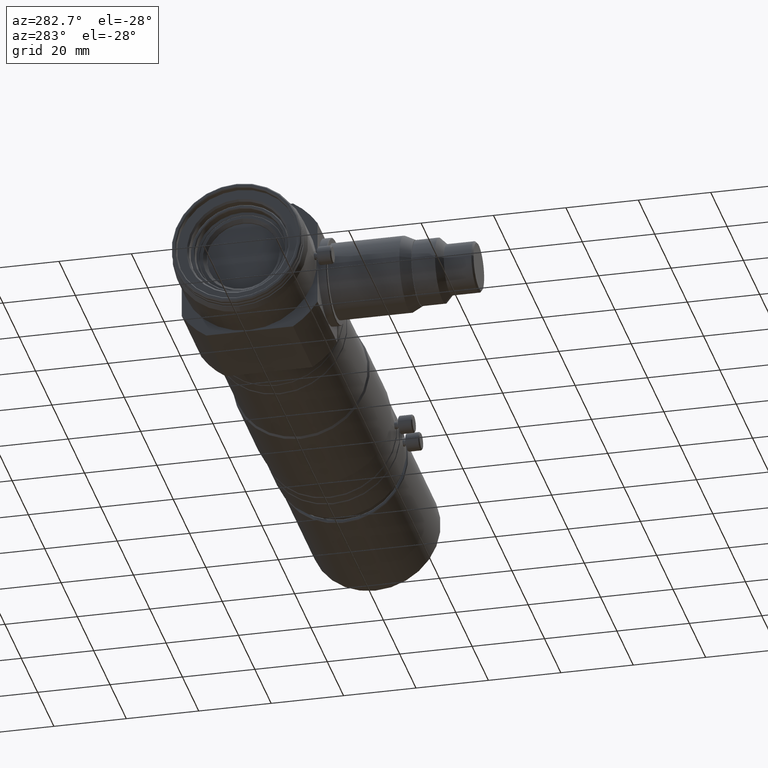
[diagram: clean part render]
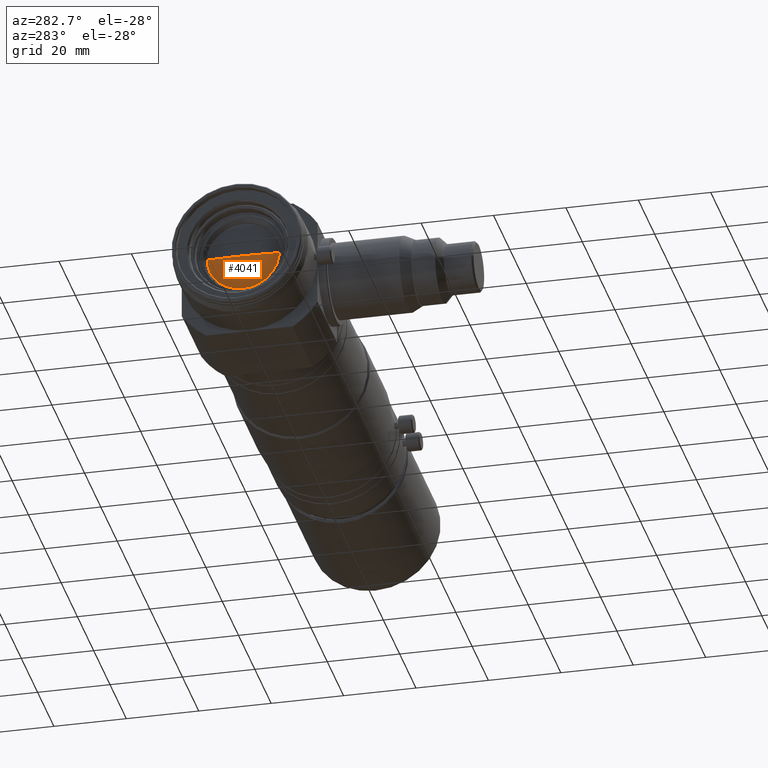
[diagram: same view with one face highlighted and labeled with its STEP entity id]
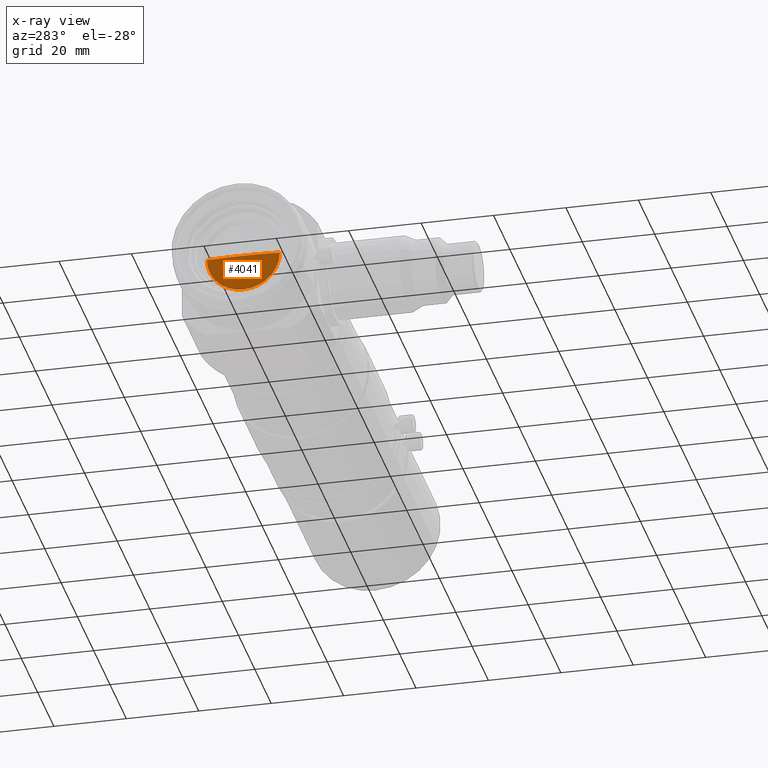
[diagram: x-ray of the same camera — body ghosted, the highlighted face saturated]
A machine part, auxiliary view. The second image highlights one B-rep face of the part: STEP entity #4041.
The next image is the same camera in x-ray: the body ghosted, the highlighted face saturated — about 0% of this face is hidden behind the body in this view.
In plain terms, the highlighted spherical surface has radius 131.8 mm.
Its self-contained STEP definition (entity closure, byte-faithful):
#76 = AXIS2_PLACEMENT_3D ( 'NONE', #2952, #4845, #6088 ) ;
#108 = CARTESIAN_POINT ( 'NONE',  ( 8.448532300058333900, 0.0000000000000000000, 0.0000000000000000000 ) ) ;
#150 = DIRECTION ( 'NONE',  ( 0.0000000000000000000, 1.000000000000000000, 1.224646799147353000E-016 ) ) ;
#172 = EDGE_CURVE ( 'NONE', #6567, #4218, #610, .T. ) ;
#271 = EDGE_CURVE ( 'NONE', #6567, #6409, #1284, .T. ) ;
#369 = DIRECTION ( 'NONE',  ( 0.0000000000000000000, 0.0000000000000000000, 1.000000000000000000 ) ) ;
#414 = CIRCLE ( 'NONE', #4610, 131.7999999999999800 ) ;
#610 = CIRCLE ( 'NONE', #5006, 131.8000000000000100 ) ;
#1176 = EDGE_CURVE ( 'NONE', #6409, #5242, #6643, .T. ) ;
#1284 = CIRCLE ( 'NONE', #1503, 10.10000000000006700 ) ;
#1296 = ORIENTED_EDGE ( 'NONE', *, *, #172, .F. ) ;
#1477 = CARTESIAN_POINT ( 'NONE',  ( 8.448532300058333900, 0.0000000000000000000, 0.0000000000000000000 ) ) ;
#1503 = AXIS2_PLACEMENT_3D ( 'NONE', #108, #5721, #5957 ) ;
#2126 = CARTESIAN_POINT ( 'NONE',  ( 8.448532300058333900, 0.0000000000000000000, -10.10000000000006700 ) ) ;
#2432 = SPHERICAL_SURFACE ( 'NONE', #76, 131.7999999999999800 ) ;
#2524 = DIRECTION ( 'NONE',  ( -0.0000000000000000000, 0.0000000000000000000, 1.000000000000000000 ) ) ;
#2726 = EDGE_CURVE ( 'NONE', #5242, #4218, #414, .T. ) ;
#2886 = CARTESIAN_POINT ( 'NONE',  ( 8.060974633347289100, -2.070352886147430100E-013, 0.0000000000000000000 ) ) ;
#2952 = CARTESIAN_POINT ( 'NONE',  ( 139.8609746333472700, -2.151057110211240800E-013, 0.0000000000000000000 ) ) ;
#3145 = CARTESIAN_POINT ( 'NONE',  ( 139.8609746333472700, -2.151057110211240800E-013, 0.0000000000000000000 ) ) ;
#3208 = ORIENTED_EDGE ( 'NONE', *, *, #1176, .T. ) ;
#3868 = DIRECTION ( 'NONE',  ( 0.0000000000000000000, 1.224646799147353200E-016, -1.000000000000000000 ) ) ;
#4041 = ADVANCED_FACE ( 'NONE', ( #4111 ), #2432, .T. ) ;
#4111 = FACE_OUTER_BOUND ( 'NONE', #6164, .T. ) ;
#4218 = VERTEX_POINT ( 'NONE', #2886 ) ;
#4345 = CARTESIAN_POINT ( 'NONE',  ( 8.448532300058341000, -10.10000000000030300, -1.236893267138837700E-015 ) ) ;
#4610 = AXIS2_PLACEMENT_3D ( 'NONE', #7611, #3868, #150 ) ;
#4815 = ORIENTED_EDGE ( 'NONE', *, *, #271, .T. ) ;
#4845 = DIRECTION ( 'NONE',  ( -0.0000000000000000000, 0.0000000000000000000, -1.000000000000000000 ) ) ;
#5006 = AXIS2_PLACEMENT_3D ( 'NONE', #3145, #2524, #6246 ) ;
#5242 = VERTEX_POINT ( 'NONE', #4345 ) ;
#5367 = DIRECTION ( 'NONE',  ( -1.000000000000000000, -0.0000000000000000000, -0.0000000000000000000 ) ) ;
#5568 = CARTESIAN_POINT ( 'NONE',  ( 8.448532300058341000, 10.10000000000008800, 0.0000000000000000000 ) ) ;
#5721 = DIRECTION ( 'NONE',  ( -1.000000000000000000, -0.0000000000000000000, -0.0000000000000000000 ) ) ;
#5957 = DIRECTION ( 'NONE',  ( 0.0000000000000000000, 0.0000000000000000000, 1.000000000000000000 ) ) ;
#6088 = DIRECTION ( 'NONE',  ( 0.0000000000000000000, 1.000000000000000000, 0.0000000000000000000 ) ) ;
#6095 = AXIS2_PLACEMENT_3D ( 'NONE', #1477, #5367, #369 ) ;
#6164 = EDGE_LOOP ( 'NONE', ( #3208, #7432, #1296, #4815 ) ) ;
#6246 = DIRECTION ( 'NONE',  ( 1.000000000000000000, 0.0000000000000000000, 0.0000000000000000000 ) ) ;
#6409 = VERTEX_POINT ( 'NONE', #2126 ) ;
#6567 = VERTEX_POINT ( 'NONE', #5568 ) ;
#6643 = CIRCLE ( 'NONE', #6095, 10.10000000000006700 ) ;
#7432 = ORIENTED_EDGE ( 'NONE', *, *, #2726, .T. ) ;
#7611 = CARTESIAN_POINT ( 'NONE',  ( 139.8609746333472700, -2.151057110211240800E-013, 0.0000000000000000000 ) ) ;